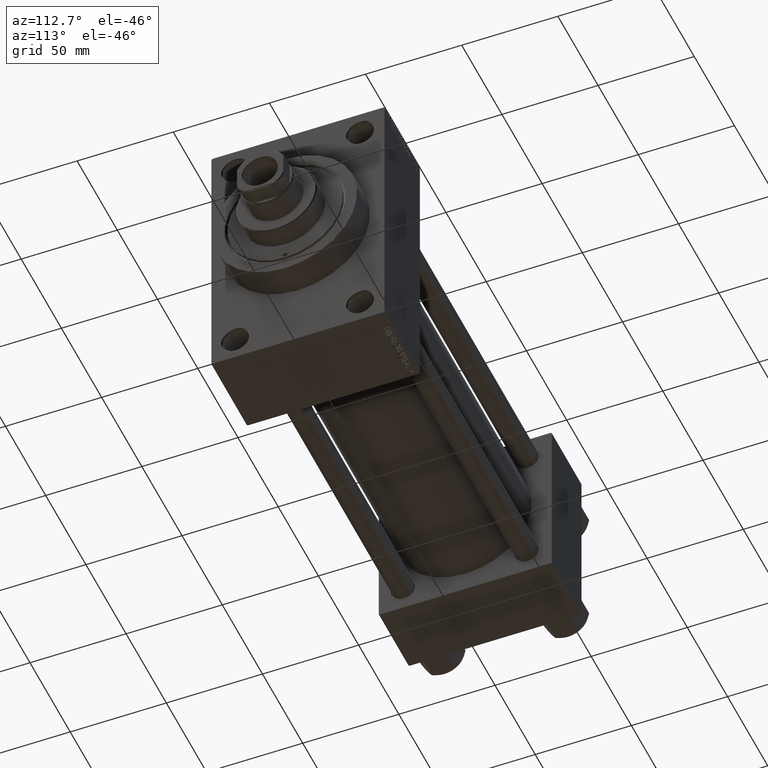
[diagram: clean part render]
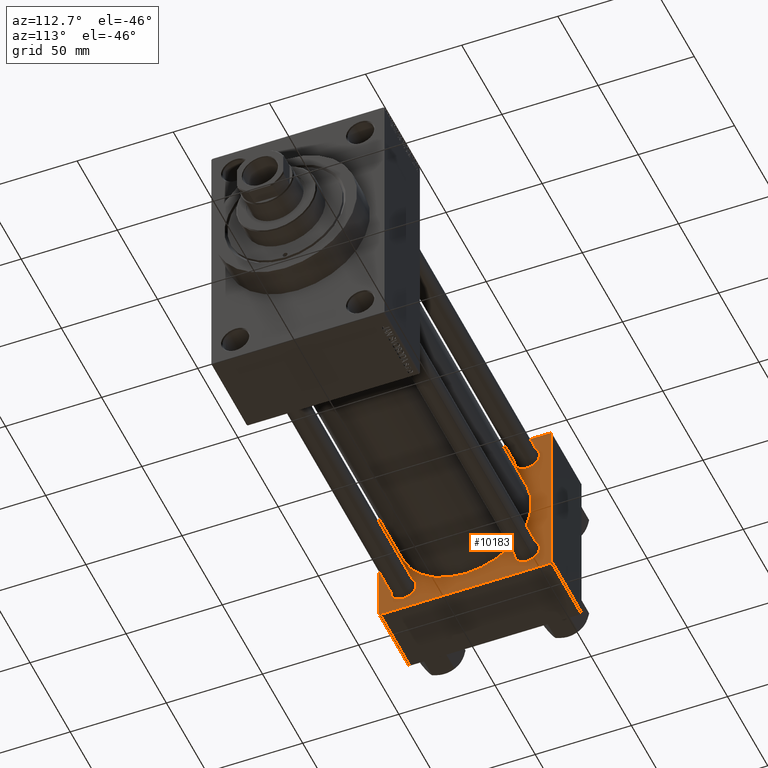
[diagram: same view with one face highlighted and labeled with its STEP entity id]
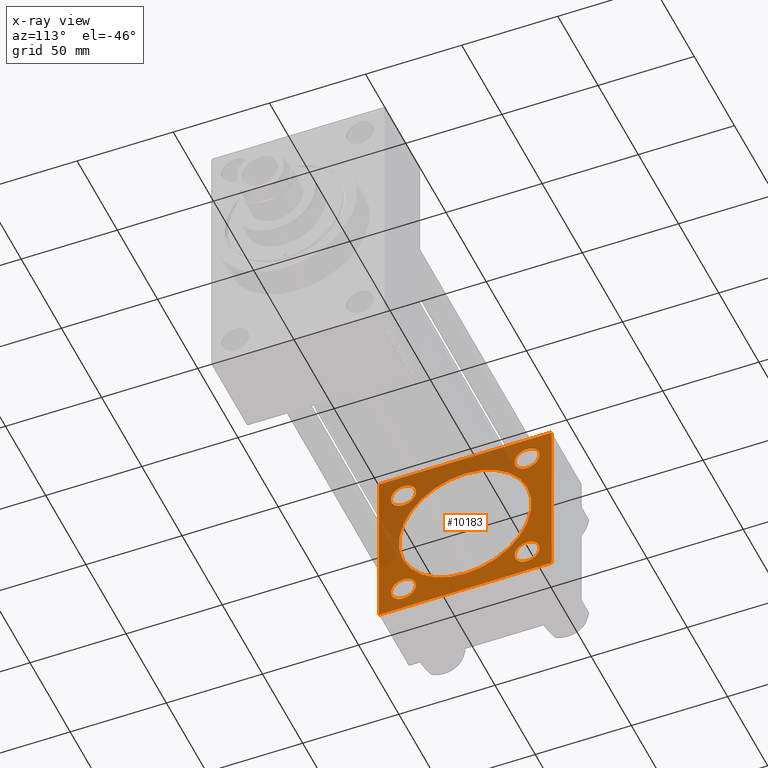
[diagram: x-ray of the same camera — body ghosted, the highlighted face saturated]
A machine part, auxiliary view. The second image highlights one B-rep face of the part: STEP entity #10183.
The next image is the same camera in x-ray: the body ghosted, the highlighted face saturated — about 35% of this face is hidden behind the body in this view.
In plain terms, the highlighted planar face has unit normal (-1, 0, 0).
Its self-contained STEP definition (entity closure, byte-faithful):
#119 = FACE_BOUND ( 'NONE', #16966, .T. ) ;
#178 = EDGE_CURVE ( 'NONE', #47225, #30041, #13037, .T. ) ;
#343 = ORIENTED_EDGE ( 'NONE', *, *, #17481, .T. ) ;
#585 = DIRECTION ( 'NONE',  ( -1.000000000000000000, 0.000000000000000000, -0.000000000000000000 ) ) ;
#826 = FACE_OUTER_BOUND ( 'NONE', #24555, .T. ) ;
#944 = CARTESIAN_POINT ( 'NONE',  ( 37.00000000000000000, 44.99999999999998579, -44.99999999999998579 ) ) ;
#1264 = DIRECTION ( 'NONE',  ( 0.000000000000000000, 0.000000000000000000, -1.000000000000000000 ) ) ;
#1392 = VERTEX_POINT ( 'NONE', #17052 ) ;
#1486 = VECTOR ( 'NONE', #27013, 1000.000000000000114 ) ;
#2092 = EDGE_LOOP ( 'NONE', ( #18811, #27974 ) ) ;
#2185 = DIRECTION ( 'NONE',  ( -1.000000000000000000, 0.000000000000000000, -0.000000000000000000 ) ) ;
#2536 = EDGE_CURVE ( 'NONE', #8900, #16879, #15008, .T. ) ;
#2740 = ORIENTED_EDGE ( 'NONE', *, *, #25010, .T. ) ;
#2778 = AXIS2_PLACEMENT_3D ( 'NONE', #24557, #16420, #42307 ) ;
#3253 = EDGE_CURVE ( 'NONE', #16879, #8900, #37233, .T. ) ;
#3831 = DIRECTION ( 'NONE',  ( 0.000000000000000000, -1.000000000000000000, -1.541976423090495633E-16 ) ) ;
#3864 = DIRECTION ( 'NONE',  ( 0.000000000000000000, 7.709882115452476934E-17, -1.000000000000000000 ) ) ;
#4014 = VERTEX_POINT ( 'NONE', #38027 ) ;
#4704 = CARTESIAN_POINT ( 'NONE',  ( 37.00000000000000000, -44.49999999999995737, 45.00000000000000000 ) ) ;
#4729 = AXIS2_PLACEMENT_3D ( 'NONE', #33149, #14442, #43702 ) ;
#5026 = VECTOR ( 'NONE', #36520, 1000.000000000000000 ) ;
#5080 = LINE ( 'NONE', #15638, #16808 ) ;
#5562 = VERTEX_POINT ( 'NONE', #16223 ) ;
#6113 = EDGE_LOOP ( 'NONE', ( #23633, #343 ) ) ;
#7576 = DIRECTION ( 'NONE',  ( 0.000000000000000000, 0.000000000000000000, 1.000000000000000000 ) ) ;
#7885 = CIRCLE ( 'NONE', #44637, 6.499999999999977796 ) ;
#8102 = LINE ( 'NONE', #22954, #1486 ) ;
#8271 = VERTEX_POINT ( 'NONE', #22865 ) ;
#8340 = AXIS2_PLACEMENT_3D ( 'NONE', #15578, #37639, #44823 ) ;
#8900 = VERTEX_POINT ( 'NONE', #26097 ) ;
#9277 = CARTESIAN_POINT ( 'NONE',  ( 37.00000000000000000, 44.49999999999998579, 45.00000000000001421 ) ) ;
#9427 = VERTEX_POINT ( 'NONE', #31637 ) ;
#9452 = CIRCLE ( 'NONE', #17900, 6.499999999999922728 ) ;
#10183 = ADVANCED_FACE ( 'NONE', ( #32729, #47349, #29116, #19289, #119, #826 ), #14740, .F. ) ;
#10326 = VECTOR ( 'NONE', #17575, 1000.000000000000114 ) ;
#10952 = DIRECTION ( 'NONE',  ( -1.000000000000000000, 0.000000000000000000, -0.000000000000000000 ) ) ;
#11740 = DIRECTION ( 'NONE',  ( 0.000000000000000000, 0.000000000000000000, 1.000000000000000000 ) ) ;
#11746 = DIRECTION ( 'NONE',  ( 0.000000000000000000, 0.000000000000000000, 1.000000000000000000 ) ) ;
#11868 = EDGE_CURVE ( 'NONE', #47225, #36555, #19166, .T. ) ;
#12119 = DIRECTION ( 'NONE',  ( -1.000000000000000000, 0.000000000000000000, -0.000000000000000000 ) ) ;
#12154 = CARTESIAN_POINT ( 'NONE',  ( 37.00000000000000000, 44.49999999999998579, -44.99999999999998579 ) ) ;
#12478 = DIRECTION ( 'NONE',  ( 0.000000000000000000, 0.000000000000000000, 1.000000000000000000 ) ) ;
#12790 = EDGE_CURVE ( 'NONE', #5562, #34182, #43550, .T. ) ;
#12961 = CARTESIAN_POINT ( 'NONE',  ( 37.00000000000000000, 32.14999999999999147, 25.65000000000008384 ) ) ;
#13037 = LINE ( 'NONE', #24285, #10326 ) ;
#13138 = CIRCLE ( 'NONE', #4729, 34.50000000000000000 ) ;
#13303 = CIRCLE ( 'NONE', #32482, 6.499999999999922728 ) ;
#13447 = CARTESIAN_POINT ( 'NONE',  ( 37.00000000000000711, -2.602085213965210642E-15, 0.000000000000000000 ) ) ;
#13469 = ORIENTED_EDGE ( 'NONE', *, *, #2536, .T. ) ;
#14192 = EDGE_LOOP ( 'NONE', ( #13469, #40576 ) ) ;
#14442 = DIRECTION ( 'NONE',  ( 1.000000000000000000, -0.000000000000000000, 0.000000000000000000 ) ) ;
#14536 = CARTESIAN_POINT ( 'NONE',  ( 37.00000000000000000, 32.14999999999999147, -32.15000000000000568 ) ) ;
#14740 = PLANE ( 'NONE',  #19830 ) ;
#14773 = DIRECTION ( 'NONE',  ( 0.000000000000000000, 0.000000000000000000, 1.000000000000000000 ) ) ;
#14846 = ORIENTED_EDGE ( 'NONE', *, *, #11868, .F. ) ;
#14884 = EDGE_CURVE ( 'NONE', #33438, #35773, #5080, .T. ) ;
#15008 = CIRCLE ( 'NONE', #32600, 6.499999999999977796 ) ;
#15406 = DIRECTION ( 'NONE',  ( -0.000000000000000000, -0.7071067811865425767, -0.7071067811865524577 ) ) ;
#15578 = CARTESIAN_POINT ( 'NONE',  ( 37.00000000000000000, 32.14999999999999147, 32.15000000000000568 ) ) ;
#15638 = CARTESIAN_POINT ( 'NONE',  ( 37.00000000000000000, -45.00000000000000711, 44.49999999999997158 ) ) ;
#15974 = CARTESIAN_POINT ( 'NONE',  ( 37.00000000000000000, -45.00000000000000711, 44.49999999999997158 ) ) ;
#16223 = CARTESIAN_POINT ( 'NONE',  ( 37.00000000000000000, 32.14999999999999147, 38.64999999999992752 ) ) ;
#16420 = DIRECTION ( 'NONE',  ( -1.000000000000000000, 0.000000000000000000, -0.000000000000000000 ) ) ;
#16587 = CARTESIAN_POINT ( 'NONE',  ( 37.00000000000000711, -2.602085213965210642E-15, 34.50000000000000000 ) ) ;
#16808 = VECTOR ( 'NONE', #15406, 1000.000000000000114 ) ;
#16867 = CIRCLE ( 'NONE', #22257, 6.499999999999922728 ) ;
#16879 = VERTEX_POINT ( 'NONE', #41854 ) ;
#16966 = EDGE_LOOP ( 'NONE', ( #38418, #34244 ) ) ;
#17052 = CARTESIAN_POINT ( 'NONE',  ( 37.00000000000000000, 44.99999999999998579, 44.50000000000001421 ) ) ;
#17481 = EDGE_CURVE ( 'NONE', #46631, #32943, #16867, .T. ) ;
#17575 = DIRECTION ( 'NONE',  ( -0.000000000000000000, 0.7071067811865474617, 0.7071067811865474617 ) ) ;
#17900 = AXIS2_PLACEMENT_3D ( 'NONE', #22905, #12119, #7576 ) ;
#18106 = LINE ( 'NONE', #43767, #23494 ) ;
#18811 = ORIENTED_EDGE ( 'NONE', *, *, #38760, .T. ) ;
#19166 = LINE ( 'NONE', #944, #29705 ) ;
#19289 = FACE_BOUND ( 'NONE', #2092, .T. ) ;
#19488 = LINE ( 'NONE', #34112, #28829 ) ;
#19830 = AXIS2_PLACEMENT_3D ( 'NONE', #29353, #585, #33675 ) ;
#20196 = CARTESIAN_POINT ( 'NONE',  ( 37.00000000000000000, 32.14999999999999147, -38.64999999999992752 ) ) ;
#22257 = AXIS2_PLACEMENT_3D ( 'NONE', #33796, #40512, #11746 ) ;
#22865 = CARTESIAN_POINT ( 'NONE',  ( 37.00000000000000711, 1.622946243093158675E-15, -34.50000000000000000 ) ) ;
#22905 = CARTESIAN_POINT ( 'NONE',  ( 37.00000000000000000, 32.14999999999999147, 32.15000000000000568 ) ) ;
#22954 = CARTESIAN_POINT ( 'NONE',  ( 37.00000000000000000, 44.49999999999998579, 45.00000000000001421 ) ) ;
#22991 = VERTEX_POINT ( 'NONE', #9277 ) ;
#23494 = VECTOR ( 'NONE', #26006, 1000.000000000000114 ) ;
#23626 = ORIENTED_EDGE ( 'NONE', *, *, #178, .T. ) ;
#23633 = ORIENTED_EDGE ( 'NONE', *, *, #40714, .T. ) ;
#23771 = DIRECTION ( 'NONE',  ( 0.000000000000000000, 0.000000000000000000, 1.000000000000000000 ) ) ;
#24285 = CARTESIAN_POINT ( 'NONE',  ( 37.00000000000000000, 44.99999999999998579, -44.49999999999998579 ) ) ;
#24555 = EDGE_LOOP ( 'NONE', ( #14846, #23626, #36800, #2740, #42952, #28209, #27388, #36438 ) ) ;
#24557 = CARTESIAN_POINT ( 'NONE',  ( 37.00000000000000000, -32.14999999999997726, 32.15000000000001279 ) ) ;
#24695 = CIRCLE ( 'NONE', #30827, 34.50000000000000000 ) ;
#25005 = VECTOR ( 'NONE', #3864, 1000.000000000000000 ) ;
#25010 = EDGE_CURVE ( 'NONE', #1392, #22991, #8102, .T. ) ;
#25712 = LINE ( 'NONE', #47063, #5026 ) ;
#25904 = CARTESIAN_POINT ( 'NONE',  ( 37.00000000000000000, -45.00000000000000711, 45.00000000000000000 ) ) ;
#26006 = DIRECTION ( 'NONE',  ( 0.000000000000000000, 0.7071067811865474617, -0.7071067811865474617 ) ) ;
#26097 = CARTESIAN_POINT ( 'NONE',  ( 37.00000000000000000, -32.14999999999997726, 25.65000000000003411 ) ) ;
#26211 = EDGE_LOOP ( 'NONE', ( #29104, #27291 ) ) ;
#27013 = DIRECTION ( 'NONE',  ( 0.000000000000000000, -0.7071067811865474617, 0.7071067811865474617 ) ) ;
#27130 = DIRECTION ( 'NONE',  ( 1.000000000000000000, -0.000000000000000000, 0.000000000000000000 ) ) ;
#27291 = ORIENTED_EDGE ( 'NONE', *, *, #46834, .T. ) ;
#27388 = ORIENTED_EDGE ( 'NONE', *, *, #46329, .T. ) ;
#27830 = DIRECTION ( 'NONE',  ( 0.000000000000000000, 0.000000000000000000, 1.000000000000000000 ) ) ;
#27974 = ORIENTED_EDGE ( 'NONE', *, *, #12790, .T. ) ;
#28068 = AXIS2_PLACEMENT_3D ( 'NONE', #37388, #44578, #11740 ) ;
#28209 = ORIENTED_EDGE ( 'NONE', *, *, #14884, .T. ) ;
#28311 = CARTESIAN_POINT ( 'NONE',  ( 37.00000000000000000, 44.99999999999998579, -44.49999999999995737 ) ) ;
#28829 = VECTOR ( 'NONE', #1264, 1000.000000000000000 ) ;
#29104 = ORIENTED_EDGE ( 'NONE', *, *, #37259, .T. ) ;
#29116 = FACE_BOUND ( 'NONE', #14192, .T. ) ;
#29353 = CARTESIAN_POINT ( 'NONE',  ( 37.00000000000000000, 0.000000000000000000, 0.000000000000000000 ) ) ;
#29705 = VECTOR ( 'NONE', #3831, 1000.000000000000000 ) ;
#30041 = VERTEX_POINT ( 'NONE', #28311 ) ;
#30827 = AXIS2_PLACEMENT_3D ( 'NONE', #13447, #27130, #27830 ) ;
#31637 = CARTESIAN_POINT ( 'NONE',  ( 37.00000000000000000, -45.00000000000000000, -44.49999999999995737 ) ) ;
#32482 = AXIS2_PLACEMENT_3D ( 'NONE', #14536, #10952, #14773 ) ;
#32600 = AXIS2_PLACEMENT_3D ( 'NONE', #34774, #34065, #12478 ) ;
#32729 = FACE_BOUND ( 'NONE', #26211, .T. ) ;
#32943 = VERTEX_POINT ( 'NONE', #20196 ) ;
#32964 = VERTEX_POINT ( 'NONE', #16587 ) ;
#33149 = CARTESIAN_POINT ( 'NONE',  ( 37.00000000000000711, -2.602085213965210642E-15, 0.000000000000000000 ) ) ;
#33438 = VERTEX_POINT ( 'NONE', #4704 ) ;
#33675 = DIRECTION ( 'NONE',  ( -0.000000000000000000, 0.000000000000000000, 1.000000000000000000 ) ) ;
#33796 = CARTESIAN_POINT ( 'NONE',  ( 37.00000000000000000, 32.14999999999999147, -32.15000000000000568 ) ) ;
#33981 = CARTESIAN_POINT ( 'NONE',  ( 37.00000000000000000, -44.49999999999995737, -45.00000000000000000 ) ) ;
#34065 = DIRECTION ( 'NONE',  ( -1.000000000000000000, 0.000000000000000000, -0.000000000000000000 ) ) ;
#34112 = CARTESIAN_POINT ( 'NONE',  ( 37.00000000000000000, 44.99999999999998579, 45.00000000000001421 ) ) ;
#34182 = VERTEX_POINT ( 'NONE', #12961 ) ;
#34244 = ORIENTED_EDGE ( 'NONE', *, *, #34811, .F. ) ;
#34774 = CARTESIAN_POINT ( 'NONE',  ( 37.00000000000000000, -32.14999999999997726, 32.15000000000001279 ) ) ;
#34811 = EDGE_CURVE ( 'NONE', #8271, #32964, #13138, .T. ) ;
#35041 = CARTESIAN_POINT ( 'NONE',  ( 37.00000000000000000, -32.14999999999997726, -32.15000000000001279 ) ) ;
#35773 = VERTEX_POINT ( 'NONE', #15974 ) ;
#36383 = VERTEX_POINT ( 'NONE', #40227 ) ;
#36438 = ORIENTED_EDGE ( 'NONE', *, *, #47324, .T. ) ;
#36520 = DIRECTION ( 'NONE',  ( 0.000000000000000000, -1.000000000000000000, -1.541976423090495387E-16 ) ) ;
#36555 = VERTEX_POINT ( 'NONE', #33981 ) ;
#36800 = ORIENTED_EDGE ( 'NONE', *, *, #46108, .F. ) ;
#37202 = EDGE_CURVE ( 'NONE', #32964, #8271, #24695, .T. ) ;
#37233 = CIRCLE ( 'NONE', #2778, 6.499999999999977796 ) ;
#37259 = EDGE_CURVE ( 'NONE', #4014, #36383, #7885, .T. ) ;
#37388 = CARTESIAN_POINT ( 'NONE',  ( 37.00000000000000000, -32.14999999999997726, -32.15000000000001279 ) ) ;
#37639 = DIRECTION ( 'NONE',  ( -1.000000000000000000, 0.000000000000000000, -0.000000000000000000 ) ) ;
#38027 = CARTESIAN_POINT ( 'NONE',  ( 37.00000000000000000, -32.14999999999997726, -38.64999999999999147 ) ) ;
#38418 = ORIENTED_EDGE ( 'NONE', *, *, #37202, .F. ) ;
#38760 = EDGE_CURVE ( 'NONE', #34182, #5562, #9452, .T. ) ;
#40227 = CARTESIAN_POINT ( 'NONE',  ( 37.00000000000000000, -32.14999999999997726, -25.65000000000003411 ) ) ;
#40512 = DIRECTION ( 'NONE',  ( -1.000000000000000000, 0.000000000000000000, -0.000000000000000000 ) ) ;
#40576 = ORIENTED_EDGE ( 'NONE', *, *, #3253, .T. ) ;
#40714 = EDGE_CURVE ( 'NONE', #32943, #46631, #13303, .T. ) ;
#41854 = CARTESIAN_POINT ( 'NONE',  ( 37.00000000000000000, -32.14999999999997726, 38.64999999999999147 ) ) ;
#42307 = DIRECTION ( 'NONE',  ( 0.000000000000000000, 0.000000000000000000, 1.000000000000000000 ) ) ;
#42952 = ORIENTED_EDGE ( 'NONE', *, *, #43949, .T. ) ;
#43150 = CARTESIAN_POINT ( 'NONE',  ( 37.00000000000000000, 32.14999999999999147, -25.65000000000008384 ) ) ;
#43550 = CIRCLE ( 'NONE', #8340, 6.499999999999922728 ) ;
#43702 = DIRECTION ( 'NONE',  ( 0.000000000000000000, 0.000000000000000000, 1.000000000000000000 ) ) ;
#43767 = CARTESIAN_POINT ( 'NONE',  ( 37.00000000000000000, -44.49999999999998579, -45.00000000000000000 ) ) ;
#43949 = EDGE_CURVE ( 'NONE', #22991, #33438, #25712, .T. ) ;
#44133 = LINE ( 'NONE', #25904, #25005 ) ;
#44578 = DIRECTION ( 'NONE',  ( -1.000000000000000000, 0.000000000000000000, -0.000000000000000000 ) ) ;
#44637 = AXIS2_PLACEMENT_3D ( 'NONE', #35041, #2185, #23771 ) ;
#44823 = DIRECTION ( 'NONE',  ( 0.000000000000000000, 0.000000000000000000, 1.000000000000000000 ) ) ;
#44938 = CIRCLE ( 'NONE', #28068, 6.499999999999977796 ) ;
#46108 = EDGE_CURVE ( 'NONE', #1392, #30041, #19488, .T. ) ;
#46329 = EDGE_CURVE ( 'NONE', #35773, #9427, #44133, .T. ) ;
#46631 = VERTEX_POINT ( 'NONE', #43150 ) ;
#46834 = EDGE_CURVE ( 'NONE', #36383, #4014, #44938, .T. ) ;
#47063 = CARTESIAN_POINT ( 'NONE',  ( 37.00000000000000000, 44.99999999999998579, 45.00000000000001421 ) ) ;
#47225 = VERTEX_POINT ( 'NONE', #12154 ) ;
#47324 = EDGE_CURVE ( 'NONE', #9427, #36555, #18106, .T. ) ;
#47349 = FACE_BOUND ( 'NONE', #6113, .T. ) ;